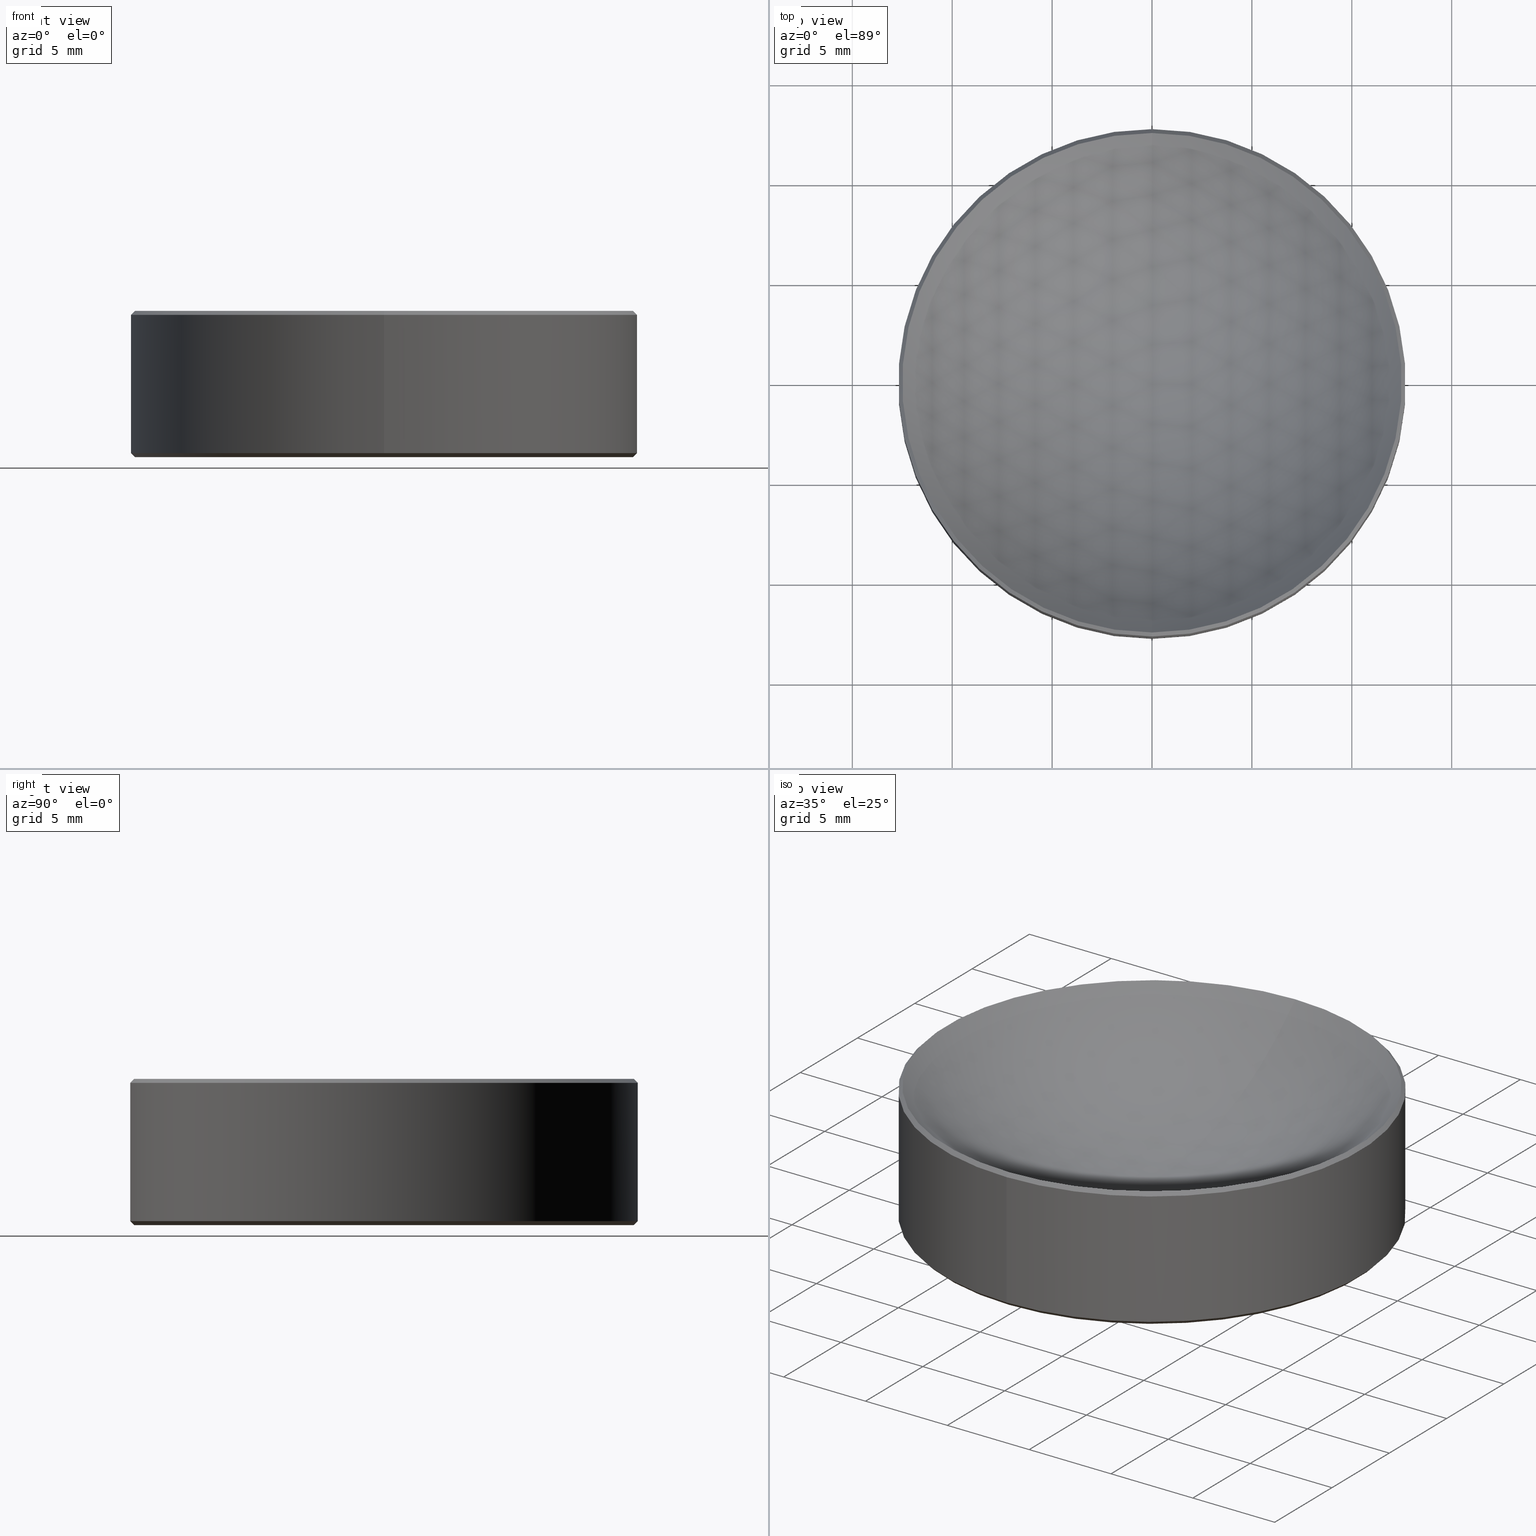
[diagram: canonical four-view strip — front | top / right | iso, engineering-drawing reading convention]
A machine part, canonical four-view strip (front | top / right | iso — engineering-drawing reading convention). The complete STEP part file that produces these views, byte-faithful:
ISO-10303-21;
HEADER;
FILE_DESCRIPTION (( 'STEP AP203' ),
    '1' );
FILE_NAME ('20143-E0W.STEP',
    '2018-06-20T14:21:29',
    ( 'admin' ),
    ( '' ),
    'SwSTEP 2.0',
    'SolidWorks 2016',
    '' );
FILE_SCHEMA (( 'CONFIG_CONTROL_DESIGN' ));
ENDSEC;

DATA;
#1 = DIRECTION ( 'NONE',  ( 0.0000000000000000000, 1.000000000000000000, 3.073328992872295900E-016 ) ) ;
#2 = CARTESIAN_POINT ( 'NONE',  ( 0.0000000000000000000, -8.099691259872544800E-017, 0.1399751683140528200 ) ) ;
#3 = EDGE_CURVE ( 'NONE', #208, #56, #245, .T. ) ;
#4 = CARTESIAN_POINT ( 'NONE',  ( 0.0000000000000000000, 0.5000000000000000000, 0.1321802904112091300 ) ) ;
#5 = CC_DESIGN_APPROVAL ( #22, ( #181 ) ) ;
#6 = PERSON_AND_ORGANIZATION ( #189, #161 ) ;
#7 = EDGE_CURVE ( 'NONE', #56, #208, #85, .T. ) ;
#8 = EDGE_CURVE ( 'NONE', #56, #282, #297, .T. ) ;
#9 = AXIS2_PLACEMENT_3D ( 'NONE', #12, #152, #174 ) ;
#10 = DIRECTION ( 'NONE',  ( 0.0000000000000000000, 1.000000000000000000, 2.999521860478629000E-016 ) ) ;
#11 = ADVANCED_FACE ( 'NONE', ( #112 ), #229, .F. ) ;
#12 = CARTESIAN_POINT ( 'NONE',  ( 0.0000000000000000000, 7.231927286352642800E-018, -0.1482116097789676600 ) ) ;
#13 = ADVANCED_BREP_SHAPE_REPRESENTATION ( '20143-E0W', ( #140, #262 ), #55 ) ;
#14 = DIRECTION ( 'NONE',  ( 0.0000000000000000000, -3.061515884555942700E-016, 1.000000000000000000 ) ) ;
#15 = AXIS2_PLACEMENT_3D ( 'NONE', #168, #32, #190 ) ;
#16 = CARTESIAN_POINT ( 'NONE',  ( 0.0000000000000000000, 0.4922051220971562200, 0.1399751683140529900 ) ) ;
#17 = SECURITY_CLASSIFICATION ( '', '', #158 ) ;
#18 = LOCAL_TIME ( 10, 21, 29.00000000000000000, #84 ) ;
#19 = MECHANICAL_CONTEXT ( 'NONE', #130, 'mechanical' ) ;
#20 = AXIS2_PLACEMENT_3D ( 'NONE', #246, #150, #10 ) ;
#21 = PERSON_AND_ORGANIZATION_ROLE ( 'classification_officer' ) ;
#22 = APPROVAL ( #73, 'UNSPECIFIED' ) ;
#23 = LINE ( 'NONE', #128, #283 ) ;
#24 = EDGE_LOOP ( 'NONE', ( #223, #255, #194, #284 ) ) ;
#25 = CALENDAR_DATE ( 2018, 20, 6 ) ;
#26 = EDGE_CURVE ( 'NONE', #301, #235, #286, .T. ) ;
#27 = EDGE_CURVE ( 'NONE', #162, #123, #113, .T. ) ;
#28 = CARTESIAN_POINT ( 'NONE',  ( 0.0000000000000000000, 0.5000000000000000000, -0.1482116097789674400 ) ) ;
#29 = CARTESIAN_POINT ( 'NONE',  ( 0.0000000000000000000, -8.099691259872544800E-017, 0.1399751683140528200 ) ) ;
#30 = VECTOR ( 'NONE', #31, 39.37007874015748900 ) ;
#31 = DIRECTION ( 'NONE',  ( 8.659560562355003100E-017, 0.7071067811865531200, 0.7071067811865416900 ) ) ;
#32 = DIRECTION ( 'NONE',  ( -0.0000000000000000000, 3.061515884555943100E-016, -1.000000000000000000 ) ) ;
#33 = ORIENTED_EDGE ( 'NONE', *, *, #8, .T. ) ;
#34 = DATE_AND_TIME ( #96, #154 ) ;
#35 = AXIS2_PLACEMENT_3D ( 'NONE', #291, #14, #239 ) ;
#36 = CONICAL_SURFACE ( 'NONE', #35, 0.4921259842519686800, 0.7853981633974567200 ) ;
#37 = AXIS2_PLACEMENT_3D ( 'NONE', #211, #139, #79 ) ;
#38 = APPROVAL ( #110, 'UNSPECIFIED' ) ;
#39 = CARTESIAN_POINT ( 'NONE',  ( 6.075019554825453600E-017, 0.4921259842519686800, -0.1482116097789675200 ) ) ;
#40 = CIRCLE ( 'NONE', #15, 0.4922051220971562800 ) ;
#41 = ADVANCED_FACE ( 'NONE', ( #227 ), #165, .T. ) ;
#42 = CARTESIAN_POINT ( 'NONE',  ( 0.0000000000000000000, -9.329186199394882900E-017, 0.6135994138430797000 ) ) ;
#43 = AXIS2_PLACEMENT_3D ( 'NONE', #129, #292, #155 ) ;
#44 = DESIGN_CONTEXT ( 'detailed design', #49, 'design' ) ;
#45 = CARTESIAN_POINT ( 'NONE',  ( 0.0000000000000000000, 0.5000000000000000000, -0.1403375940309363200 ) ) ;
#46 = PERSON_AND_ORGANIZATION ( #189, #161 ) ;
#47 = CC_DESIGN_SECURITY_CLASSIFICATION ( #17, ( #258 ) ) ;
#48 = CARTESIAN_POINT ( 'NONE',  ( 0.0000000000000000000, 0.0000000000000000000, 0.0000000000000000000 ) ) ;
#49 = APPLICATION_CONTEXT ( 'configuration controlled 3d designs of mechanical parts and assemblies' ) ;
#50 = APPROVAL_STATUS ( 'not_yet_approved' ) ;
#51 = ORIENTED_EDGE ( 'NONE', *, *, #27, .F. ) ;
#52 = AXIS2_PLACEMENT_3D ( 'NONE', #263, #287, #107 ) ;
#53 = ORIENTED_EDGE ( 'NONE', *, *, #74, .T. ) ;
#54 = CC_DESIGN_DATE_AND_TIME_ASSIGNMENT ( #304, #180, ( #17 ) ) ;
#55 =( GEOMETRIC_REPRESENTATION_CONTEXT ( 3 ) GLOBAL_UNCERTAINTY_ASSIGNED_CONTEXT ( ( #94 ) ) GLOBAL_UNIT_ASSIGNED_CONTEXT ( ( #72, #222, #91 ) ) REPRESENTATION_CONTEXT ( 'NONE', 'WORKASPACE' ) );
#56 = VERTEX_POINT ( 'NONE', #4 ) ;
#57 = CC_DESIGN_PERSON_AND_ORGANIZATION_ASSIGNMENT ( #101, #177, ( #105 ) ) ;
#58 = DIRECTION ( 'NONE',  ( -0.0000000000000000000, 3.061515884555943100E-016, -1.000000000000000000 ) ) ;
#59 = DIRECTION ( 'NONE',  ( 0.0000000000000000000, 1.000000000000000000, 3.122000213831229100E-016 ) ) ;
#60 = LINE ( 'NONE', #103, #265 ) ;
#61 = LINE ( 'NONE', #70, #99 ) ;
#62 = DIRECTION ( 'NONE',  ( -0.0000000000000000000, 3.061515884555943100E-016, -1.000000000000000000 ) ) ;
#63 = ORIENTED_EDGE ( 'NONE', *, *, #71, .T. ) ;
#64 = EDGE_CURVE ( 'NONE', #162, #282, #231, .T. ) ;
#65 = LOCAL_TIME ( 10, 21, 29.00000000000000000, #119 ) ;
#66 = ORIENTED_EDGE ( 'NONE', *, *, #126, .F. ) ;
#67 = ADVANCED_FACE ( 'NONE', ( #299 ), #219, .T. ) ;
#68 = CC_DESIGN_DATE_AND_TIME_ASSIGNMENT ( #256, #242, ( #181 ) ) ;
#69 = DIRECTION ( 'NONE',  ( -1.224646799147353200E-016, 1.000000000000000000, 0.0000000000000000000 ) ) ;
#70 = CARTESIAN_POINT ( 'NONE',  ( 0.0000000000000000000, -0.4921259842519686800, -0.1482116097789678300 ) ) ;
#71 = EDGE_CURVE ( 'NONE', #235, #208, #95, .T. ) ;
#72 =( CONVERSION_BASED_UNIT ( 'INCH', #160 ) LENGTH_UNIT ( ) NAMED_UNIT ( #290 ) );
#73 = APPROVAL_STATUS ( 'not_yet_approved' ) ;
#74 = EDGE_CURVE ( 'NONE', #235, #301, #40, .T. ) ;
#75 = CALENDAR_DATE ( 2018, 20, 6 ) ;
#76 = APPROVAL ( #50, 'UNSPECIFIED' ) ;
#77 = PERSON_AND_ORGANIZATION ( #189, #161 ) ;
#78 = DIRECTION ( 'NONE',  ( -0.0000000000000000000, 3.061515884555943100E-016, -1.000000000000000000 ) ) ;
#79 = DIRECTION ( 'NONE',  ( 0.0000000000000000000, 1.000000000000000000, 3.073328992872296400E-016 ) ) ;
#80 = EDGE_CURVE ( 'NONE', #123, #162, #159, .T. ) ;
#81 = DIRECTION ( 'NONE',  ( 0.0000000000000000000, 1.000000000000000000, 3.122000213831229100E-016 ) ) ;
#82 = CARTESIAN_POINT ( 'NONE',  ( 0.0000000000000000000, 7.231927286352641300E-018, -0.1482116097789676600 ) ) ;
#83 = DIRECTION ( 'NONE',  ( 0.0000000000000000000, 1.000000000000000000, 3.073328992872296400E-016 ) ) ;
#84 = COORDINATED_UNIVERSAL_TIME_OFFSET ( 5, 0, .BEHIND. ) ;
#85 = CIRCLE ( 'NONE', #169, 0.5000000000000001100 ) ;
#86 = EDGE_LOOP ( 'NONE', ( #104, #108, #33, #171 ) ) ;
#87 = DIRECTION ( 'NONE',  ( 0.0000000000000000000, 1.000000000000000000, 3.061515884555943100E-016 ) ) ;
#88 = CARTESIAN_POINT ( 'NONE',  ( 6.075504134369456800E-017, -0.4922051220971563300, 0.1399751683140526800 ) ) ;
#89 = CIRCLE ( 'NONE', #279, 0.6830708661417321800 ) ;
#90 = LOCAL_TIME ( 10, 21, 29.00000000000000000, #147 ) ;
#91 =( NAMED_UNIT ( * ) SI_UNIT ( $, .STERADIAN. ) SOLID_ANGLE_UNIT ( ) );
#92 = PERSON_AND_ORGANIZATION_ROLE ( 'creator' ) ;
#93 = ORIENTED_EDGE ( 'NONE', *, *, #141, .F. ) ;
#94 = UNCERTAINTY_MEASURE_WITH_UNIT (LENGTH_MEASURE( 1.000000000000000100E-005 ), #72, 'distance_accuracy_value', 'NONE');
#95 = LINE ( 'NONE', #251, #142 ) ;
#96 = CALENDAR_DATE ( 2018, 20, 6 ) ;
#97 = DIRECTION ( 'NONE',  ( -0.0000000000000000000, 3.061515884555943100E-016, -1.000000000000000000 ) ) ;
#98 = DIRECTION ( 'NONE',  ( 1.000000000000000000, 0.0000000000000000000, -0.0000000000000000000 ) ) ;
#99 = VECTOR ( 'NONE', #240, 39.37007874015748100 ) ;
#100 = DIRECTION ( 'NONE',  ( -0.0000000000000000000, 3.061515884555943100E-016, -1.000000000000000000 ) ) ;
#101 = PERSON_AND_ORGANIZATION ( #189, #161 ) ;
#102 = DIRECTION ( 'NONE',  ( 0.0000000000000000000, 1.000000000000000000, 3.122502256758251800E-016 ) ) ;
#103 = CARTESIAN_POINT ( 'NONE',  ( 0.0000000000000000000, 0.4922051220971562200, 0.1399751683140529900 ) ) ;
#104 = ORIENTED_EDGE ( 'NONE', *, *, #175, .F. ) ;
#105 = PRODUCT ( '20143-E0W', '20143-E0W', '', ( #19 ) ) ;
#106 = CARTESIAN_POINT ( 'NONE',  ( 6.123233995736767300E-017, -0.5000000000000001100, 0.1321802904112088200 ) ) ;
#107 = DIRECTION ( 'NONE',  ( 0.0000000000000000000, 1.000000000000000000, 3.073328992872296400E-016 ) ) ;
#108 = ORIENTED_EDGE ( 'NONE', *, *, #3, .T. ) ;
#109 = APPLICATION_PROTOCOL_DEFINITION ( 'international standard', 'config_control_design', 1994, #130 ) ;
#110 = APPROVAL_STATUS ( 'not_yet_approved' ) ;
#111 = ORIENTED_EDGE ( 'NONE', *, *, #26, .F. ) ;
#112 = FACE_OUTER_BOUND ( 'NONE', #163, .T. ) ;
#113 = CIRCLE ( 'NONE', #254, 0.4921259842519686800 ) ;
#114 = ORIENTED_EDGE ( 'NONE', *, *, #205, .T. ) ;
#115 = CYLINDRICAL_SURFACE ( 'NONE', #52, 0.5000000000000000000 ) ;
#116 = ORIENTED_EDGE ( 'NONE', *, *, #80, .F. ) ;
#117 = ORIENTED_EDGE ( 'NONE', *, *, #26, .T. ) ;
#118 = VERTEX_POINT ( 'NONE', #281 ) ;
#119 = COORDINATED_UNIVERSAL_TIME_OFFSET ( 5, 0, .BEHIND. ) ;
#120 = AXIS2_PLACEMENT_3D ( 'NONE', #29, #188, #59 ) ;
#121 = DIRECTION ( 'NONE',  ( 8.659560562354895900E-017, -0.7071067811865442400, -0.7071067811865507900 ) ) ;
#122 = DIRECTION ( 'NONE',  ( -0.0000000000000000000, 3.061515884555943100E-016, -1.000000000000000000 ) ) ;
#123 = VERTEX_POINT ( 'NONE', #145 ) ;
#124 = LOCAL_TIME ( 10, 21, 29.00000000000000000, #184 ) ;
#125 = DIRECTION ( 'NONE',  ( 0.0000000000000000000, 0.0000000000000000000, 1.000000000000000000 ) ) ;
#126 = EDGE_CURVE ( 'NONE', #266, #282, #272, .T. ) ;
#127 = ADVANCED_FACE ( 'NONE', ( #230 ), #252, .T. ) ;
#128 = CARTESIAN_POINT ( 'NONE',  ( 6.123233995736766000E-017, -0.5000000000000000000, -0.1482116097789677500 ) ) ;
#129 = CARTESIAN_POINT ( 'NONE',  ( 0.0000000000000000000, 4.821284857568531500E-018, -0.1403375940309364900 ) ) ;
#130 = APPLICATION_CONTEXT ( 'configuration controlled 3d designs of mechanical parts and assemblies' ) ;
#131 = APPROVAL_DATE_TIME ( #192, #38 ) ;
#132 = PERSON_AND_ORGANIZATION_ROLE ( 'creator' ) ;
#133 = AXIS2_PLACEMENT_3D ( 'NONE', #42, #197, #69 ) ;
#134 = APPROVAL_DATE_TIME ( #198, #76 ) ;
#135 = APPROVAL_PERSON_ORGANIZATION ( #200, #38, #268 ) ;
#136 = VECTOR ( 'NONE', #78, 39.37007874015748100 ) ;
#137 = FACE_OUTER_BOUND ( 'NONE', #144, .T. ) ;
#138 = DIRECTION ( 'NONE',  ( 0.0000000000000000000, 0.7071067811865446900, -0.7071067811865503500 ) ) ;
#139 = DIRECTION ( 'NONE',  ( -0.0000000000000000000, 3.061515884555943100E-016, -1.000000000000000000 ) ) ;
#140 = MANIFOLD_SOLID_BREP ( '20143-001-1-solid1', #264 ) ;
#141 = EDGE_CURVE ( 'NONE', #301, #56, #60, .T. ) ;
#142 = VECTOR ( 'NONE', #121, 39.37007874015748100 ) ;
#143 = CARTESIAN_POINT ( 'NONE',  ( 6.026805113914142300E-017, 0.4921259842519686800, -0.1482116097789675200 ) ) ;
#144 = EDGE_LOOP ( 'NONE', ( #51, #269, #66, #225 ) ) ;
#145 = CARTESIAN_POINT ( 'NONE',  ( 0.0000000000000000000, -0.4921259842519686800, -0.1482116097789678300 ) ) ;
#146 = SPHERICAL_SURFACE ( 'NONE', #20, 0.6830708661417322900 ) ;
#147 = COORDINATED_UNIVERSAL_TIME_OFFSET ( 5, 0, .BEHIND. ) ;
#148 = PRODUCT_RELATED_PRODUCT_CATEGORY ( 'detail', '', ( #105 ) ) ;
#149 = EDGE_CURVE ( 'NONE', #301, #118, #89, .T. ) ;
#150 = DIRECTION ( 'NONE',  ( 1.000000000000000000, 0.0000000000000000000, -0.0000000000000000000 ) ) ;
#151 = ADVANCED_FACE ( 'NONE', ( #207 ), #146, .F. ) ;
#152 = DIRECTION ( 'NONE',  ( 0.0000000000000000000, -3.061515884555942700E-016, 1.000000000000000000 ) ) ;
#153 = ORIENTED_EDGE ( 'NONE', *, *, #7, .F. ) ;
#154 = LOCAL_TIME ( 10, 21, 29.00000000000000000, #213 ) ;
#155 = DIRECTION ( 'NONE',  ( 0.0000000000000000000, 1.000000000000000000, 3.073328992872296400E-016 ) ) ;
#156 = DIRECTION ( 'NONE',  ( 1.000000000000000000, 0.0000000000000000000, 0.0000000000000000000 ) ) ;
#157 = FACE_OUTER_BOUND ( 'NONE', #216, .T. ) ;
#158 = SECURITY_CLASSIFICATION_LEVEL ( 'unclassified' ) ;
#159 = CIRCLE ( 'NONE', #288, 0.4921259842519686800 ) ;
#160 = LENGTH_MEASURE_WITH_UNIT ( LENGTH_MEASURE( 0.02539999999999999900 ), #221 );
#161 = ORGANIZATION ( 'UNSPECIFIED', 'UNSPECIFIED', '' ) ;
#162 = VERTEX_POINT ( 'NONE', #39 ) ;
#163 = EDGE_LOOP ( 'NONE', ( #212, #111, #164 ) ) ;
#164 = ORIENTED_EDGE ( 'NONE', *, *, #149, .T. ) ;
#165 = CYLINDRICAL_SURFACE ( 'NONE', #37, 0.5000000000000000000 ) ;
#166 = DIRECTION ( 'NONE',  ( 0.0000000000000000000, 1.000000000000000000, 3.122000213831229100E-016 ) ) ;
#167 = AXIS2_PLACEMENT_3D ( 'NONE', #278, #98, #248 ) ;
#168 = CARTESIAN_POINT ( 'NONE',  ( 0.0000000000000000000, -8.099691259872544800E-017, 0.1399751683140528200 ) ) ;
#169 = AXIS2_PLACEMENT_3D ( 'NONE', #187, #58, #210 ) ;
#170 = ORIENTED_EDGE ( 'NONE', *, *, #3, .F. ) ;
#171 = ORIENTED_EDGE ( 'NONE', *, *, #296, .T. ) ;
#172 = ADVANCED_FACE ( 'NONE', ( #243 ), #173, .T. ) ;
#173 = PLANE ( 'NONE',  #271 ) ;
#174 = DIRECTION ( 'NONE',  ( 0.0000000000000000000, -1.000000000000000000, -3.122502256758251800E-016 ) ) ;
#175 = EDGE_CURVE ( 'NONE', #208, #266, #23, .T. ) ;
#176 = SHAPE_DEFINITION_REPRESENTATION ( #206, #13 ) ;
#177 = PERSON_AND_ORGANIZATION_ROLE ( 'design_owner' ) ;
#178 = EDGE_LOOP ( 'NONE', ( #183, #303 ) ) ;
#179 = APPROVAL_PERSON_ORGANIZATION ( #236, #76, #203 ) ;
#180 = DATE_TIME_ROLE ( 'classification_date' ) ;
#181 = PRODUCT_DEFINITION ( 'UNKNOWN', '', #258, #44 ) ;
#182 = CC_DESIGN_APPROVAL ( #38, ( #258 ) ) ;
#183 = ORIENTED_EDGE ( 'NONE', *, *, #80, .T. ) ;
#184 = COORDINATED_UNIVERSAL_TIME_OFFSET ( 5, 0, .BEHIND. ) ;
#185 = AXIS2_PLACEMENT_3D ( 'NONE', #2, #62, #166 ) ;
#186 = CARTESIAN_POINT ( 'NONE',  ( 0.0000000000000000000, -7.861049834695238200E-017, 0.1321802904112089900 ) ) ;
#187 = CARTESIAN_POINT ( 'NONE',  ( 0.0000000000000000000, -7.861049834695238200E-017, 0.1321802904112089900 ) ) ;
#188 = DIRECTION ( 'NONE',  ( -0.0000000000000000000, 3.061515884555943100E-016, -1.000000000000000000 ) ) ;
#189 = PERSON ( 'UNSPECIFIED', 'UNSPECIFIED', 'UNSPECIFIED', ('UNSPECIFIED'), ('UNSPECIFIED'), ('UNSPECIFIED') ) ;
#190 = DIRECTION ( 'NONE',  ( 0.0000000000000000000, 1.000000000000000000, 3.122000213831229100E-016 ) ) ;
#191 = EDGE_LOOP ( 'NONE', ( #117, #63, #153, #93 ) ) ;
#192 = DATE_AND_TIME ( #244, #18 ) ;
#193 = CONICAL_SURFACE ( 'NONE', #9, 0.4921259842519686800, 0.7853981633974567200 ) ;
#194 = ORIENTED_EDGE ( 'NONE', *, *, #126, .T. ) ;
#195 = CC_DESIGN_PERSON_AND_ORGANIZATION_ASSIGNMENT ( #77, #132, ( #258 ) ) ;
#196 = CARTESIAN_POINT ( 'NONE',  ( 0.0000000000000000000, 7.231927286352642800E-018, -0.1482116097789676600 ) ) ;
#197 = DIRECTION ( 'NONE',  ( 1.000000000000000000, 1.224646799147353200E-016, 3.749275628560213600E-032 ) ) ;
#198 = DATE_AND_TIME ( #250, #65 ) ;
#199 = CARTESIAN_POINT ( 'NONE',  ( 6.123233995736766000E-017, -0.5000000000000000000, -0.1403375940309366200 ) ) ;
#200 = PERSON_AND_ORGANIZATION ( #189, #161 ) ;
#201 = APPLICATION_PROTOCOL_DEFINITION ( 'international standard', 'config_control_design', 1994, #49 ) ;
#202 = AXIS2_PLACEMENT_3D ( 'NONE', #186, #97, #1 ) ;
#203 = APPROVAL_ROLE ( '' ) ;
#204 = ORIENTED_EDGE ( 'NONE', *, *, #141, .T. ) ;
#205 = EDGE_CURVE ( 'NONE', #235, #118, #214, .T. ) ;
#206 = PRODUCT_DEFINITION_SHAPE ( 'NONE', 'NONE',  #181 ) ;
#207 = FACE_OUTER_BOUND ( 'NONE', #277, .T. ) ;
#208 = VERTEX_POINT ( 'NONE', #106 ) ;
#209 = PERSON_AND_ORGANIZATION ( #189, #161 ) ;
#210 = DIRECTION ( 'NONE',  ( 0.0000000000000000000, 1.000000000000000000, 3.073328992872295900E-016 ) ) ;
#211 = CARTESIAN_POINT ( 'NONE',  ( 0.0000000000000000000, 7.231927286352619700E-018, -0.1482116097789675800 ) ) ;
#212 = ORIENTED_EDGE ( 'NONE', *, *, #205, .F. ) ;
#213 = COORDINATED_UNIVERSAL_TIME_OFFSET ( 5, 0, .BEHIND. ) ;
#214 = CIRCLE ( 'NONE', #133, 0.6830708661417322900 ) ;
#215 = EDGE_LOOP ( 'NONE', ( #228, #53, #204, #170 ) ) ;
#216 = EDGE_LOOP ( 'NONE', ( #270, #116, #226, #293 ) ) ;
#217 = DIRECTION ( 'NONE',  ( -0.0000000000000000000, 3.061515884555943100E-016, -1.000000000000000000 ) ) ;
#218 = ADVANCED_FACE ( 'NONE', ( #157 ), #193, .T. ) ;
#219 = CONICAL_SURFACE ( 'NONE', #185, 0.4922051220971562800, 0.7853981633974439500 ) ;
#220 = CC_DESIGN_PERSON_AND_ORGANIZATION_ASSIGNMENT ( #241, #21, ( #17 ) ) ;
#221 =( LENGTH_UNIT ( ) NAMED_UNIT ( * ) SI_UNIT ( $, .METRE. ) );
#222 =( NAMED_UNIT ( * ) PLANE_ANGLE_UNIT ( ) SI_UNIT ( $, .RADIAN. ) );
#223 = ORIENTED_EDGE ( 'NONE', *, *, #7, .T. ) ;
#224 = APPROVAL_ROLE ( '' ) ;
#225 = ORIENTED_EDGE ( 'NONE', *, *, #298, .F. ) ;
#226 = ORIENTED_EDGE ( 'NONE', *, *, #298, .T. ) ;
#227 = FACE_OUTER_BOUND ( 'NONE', #86, .T. ) ;
#228 = ORIENTED_EDGE ( 'NONE', *, *, #71, .F. ) ;
#229 = SPHERICAL_SURFACE ( 'NONE', #167, 0.6830708661417322900 ) ;
#230 = FACE_OUTER_BOUND ( 'NONE', #191, .T. ) ;
#231 = LINE ( 'NONE', #143, #30 ) ;
#232 = CARTESIAN_POINT ( 'NONE',  ( 0.0000000000000000000, 7.231927286352641300E-018, -0.1482116097789676600 ) ) ;
#233 = DIRECTION ( 'NONE',  ( -0.0000000000000000000, 3.061515884555943100E-016, -1.000000000000000000 ) ) ;
#234 = CARTESIAN_POINT ( 'NONE',  ( 0.0000000000000000000, 4.821284857568531500E-018, -0.1403375940309364900 ) ) ;
#235 = VERTEX_POINT ( 'NONE', #88 ) ;
#236 = PERSON_AND_ORGANIZATION ( #189, #161 ) ;
#237 = CC_DESIGN_PERSON_AND_ORGANIZATION_ASSIGNMENT ( #6, #295, ( #258 ) ) ;
#238 = ADVANCED_FACE ( 'NONE', ( #274 ), #115, .T. ) ;
#239 = DIRECTION ( 'NONE',  ( 0.0000000000000000000, -1.000000000000000000, -3.122502256758251800E-016 ) ) ;
#240 = DIRECTION ( 'NONE',  ( 0.0000000000000000000, -0.7071067811865536800, 0.7071067811865413600 ) ) ;
#241 = PERSON_AND_ORGANIZATION ( #189, #161 ) ;
#242 = DATE_TIME_ROLE ( 'creation_date' ) ;
#243 = FACE_OUTER_BOUND ( 'NONE', #178, .T. ) ;
#244 = CALENDAR_DATE ( 2018, 20, 6 ) ;
#245 = CIRCLE ( 'NONE', #202, 0.5000000000000001100 ) ;
#246 = CARTESIAN_POINT ( 'NONE',  ( 0.0000000000000000000, -9.329186199394882900E-017, 0.6135994138430797000 ) ) ;
#247 = AXIS2_PLACEMENT_3D ( 'NONE', #253, #122, #81 ) ;
#248 = DIRECTION ( 'NONE',  ( 0.0000000000000000000, 1.000000000000000000, 2.999521860478629000E-016 ) ) ;
#249 = DIRECTION ( 'NONE',  ( 0.0000000000000000000, 1.000000000000000000, 3.122502256758251800E-016 ) ) ;
#250 = CALENDAR_DATE ( 2018, 20, 6 ) ;
#251 = CARTESIAN_POINT ( 'NONE',  ( 6.027774273002146400E-017, -0.4922051220971563300, 0.1399751683140526800 ) ) ;
#252 = CONICAL_SURFACE ( 'NONE', #247, 0.4922051220971562800, 0.7853981633974439500 ) ;
#253 = CARTESIAN_POINT ( 'NONE',  ( 0.0000000000000000000, -8.099691259872544800E-017, 0.1399751683140528200 ) ) ;
#254 = AXIS2_PLACEMENT_3D ( 'NONE', #232, #100, #249 ) ;
#255 = ORIENTED_EDGE ( 'NONE', *, *, #175, .T. ) ;
#256 = DATE_AND_TIME ( #25, #90 ) ;
#257 = DIRECTION ( 'NONE',  ( 0.0000000000000000000, -3.061515884555942700E-016, 1.000000000000000000 ) ) ;
#258 = PRODUCT_DEFINITION_FORMATION_WITH_SPECIFIED_SOURCE ( 'ANY', '', #105, .NOT_KNOWN. ) ;
#259 = DIRECTION ( 'NONE',  ( -1.000000000000000000, 0.0000000000000000000, 0.0000000000000000000 ) ) ;
#260 = ADVANCED_FACE ( 'NONE', ( #137 ), #36, .T. ) ;
#261 = CARTESIAN_POINT ( 'NONE',  ( 0.0000000000000000000, -9.329186199394882900E-017, 0.6135994138430797000 ) ) ;
#262 = AXIS2_PLACEMENT_3D ( 'NONE', #48, #294, #156 ) ;
#263 = CARTESIAN_POINT ( 'NONE',  ( 0.0000000000000000000, 7.231927286352619700E-018, -0.1482116097789675800 ) ) ;
#264 = CLOSED_SHELL ( 'NONE', ( #260, #151, #127, #238, #172, #41, #67, #11, #218 ) ) ;
#265 = VECTOR ( 'NONE', #138, 39.37007874015748100 ) ;
#266 = VERTEX_POINT ( 'NONE', #199 ) ;
#267 = APPROVAL_DATE_TIME ( #34, #22 ) ;
#268 = APPROVAL_ROLE ( '' ) ;
#269 = ORIENTED_EDGE ( 'NONE', *, *, #64, .T. ) ;
#270 = ORIENTED_EDGE ( 'NONE', *, *, #64, .F. ) ;
#271 = AXIS2_PLACEMENT_3D ( 'NONE', #196, #217, #87 ) ;
#272 = CIRCLE ( 'NONE', #275, 0.5000000000000000000 ) ;
#273 = APPROVAL_PERSON_ORGANIZATION ( #46, #22, #224 ) ;
#274 = FACE_OUTER_BOUND ( 'NONE', #24, .T. ) ;
#275 = AXIS2_PLACEMENT_3D ( 'NONE', #234, #257, #83 ) ;
#276 = CC_DESIGN_APPROVAL ( #76, ( #17 ) ) ;
#277 = EDGE_LOOP ( 'NONE', ( #302, #114, #280 ) ) ;
#278 = CARTESIAN_POINT ( 'NONE',  ( 0.0000000000000000000, -9.329186199394882900E-017, 0.6135994138430797000 ) ) ;
#279 = AXIS2_PLACEMENT_3D ( 'NONE', #261, #259, #125 ) ;
#280 = ORIENTED_EDGE ( 'NONE', *, *, #149, .F. ) ;
#281 = CARTESIAN_POINT ( 'NONE',  ( 0.0000000000000000000, 1.576573961936453100E-016, -0.06947145229865260600 ) ) ;
#282 = VERTEX_POINT ( 'NONE', #45 ) ;
#283 = VECTOR ( 'NONE', #289, 39.37007874015748100 ) ;
#284 = ORIENTED_EDGE ( 'NONE', *, *, #8, .F. ) ;
#285 = CC_DESIGN_PERSON_AND_ORGANIZATION_ASSIGNMENT ( #209, #92, ( #181 ) ) ;
#286 = CIRCLE ( 'NONE', #120, 0.4922051220971562800 ) ;
#287 = DIRECTION ( 'NONE',  ( -0.0000000000000000000, 3.061515884555943100E-016, -1.000000000000000000 ) ) ;
#288 = AXIS2_PLACEMENT_3D ( 'NONE', #82, #233, #102 ) ;
#289 = DIRECTION ( 'NONE',  ( -0.0000000000000000000, 3.061515884555943100E-016, -1.000000000000000000 ) ) ;
#290 = DIMENSIONAL_EXPONENTS ( 1.000000000000000000, 0.0000000000000000000, 0.0000000000000000000, 0.0000000000000000000, 0.0000000000000000000, 0.0000000000000000000, 0.0000000000000000000 ) ;
#291 = CARTESIAN_POINT ( 'NONE',  ( 0.0000000000000000000, 7.231927286352642800E-018, -0.1482116097789676600 ) ) ;
#292 = DIRECTION ( 'NONE',  ( 0.0000000000000000000, -3.061515884555942700E-016, 1.000000000000000000 ) ) ;
#293 = ORIENTED_EDGE ( 'NONE', *, *, #296, .F. ) ;
#294 = DIRECTION ( 'NONE',  ( 0.0000000000000000000, 0.0000000000000000000, 1.000000000000000000 ) ) ;
#295 = PERSON_AND_ORGANIZATION_ROLE ( 'design_supplier' ) ;
#296 = EDGE_CURVE ( 'NONE', #282, #266, #300, .T. ) ;
#297 = LINE ( 'NONE', #28, #136 ) ;
#298 = EDGE_CURVE ( 'NONE', #123, #266, #61, .T. ) ;
#299 = FACE_OUTER_BOUND ( 'NONE', #215, .T. ) ;
#300 = CIRCLE ( 'NONE', #43, 0.5000000000000000000 ) ;
#301 = VERTEX_POINT ( 'NONE', #16 ) ;
#302 = ORIENTED_EDGE ( 'NONE', *, *, #74, .F. ) ;
#303 = ORIENTED_EDGE ( 'NONE', *, *, #27, .T. ) ;
#304 = DATE_AND_TIME ( #75, #124 ) ;
ENDSEC;
END-ISO-10303-21;
